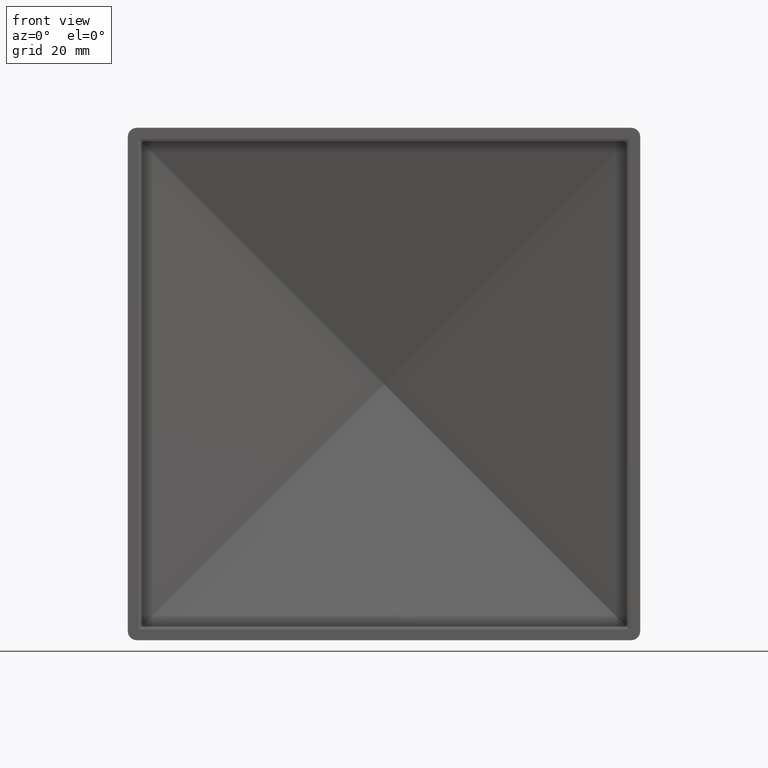
[diagram: clean part render]
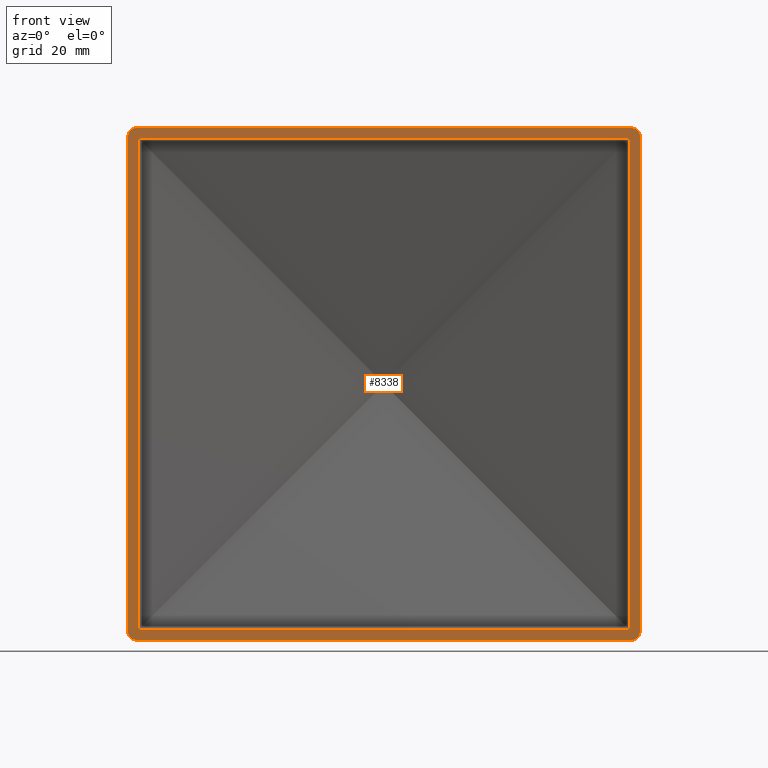
[diagram: same view with one face highlighted and labeled with its STEP entity id]
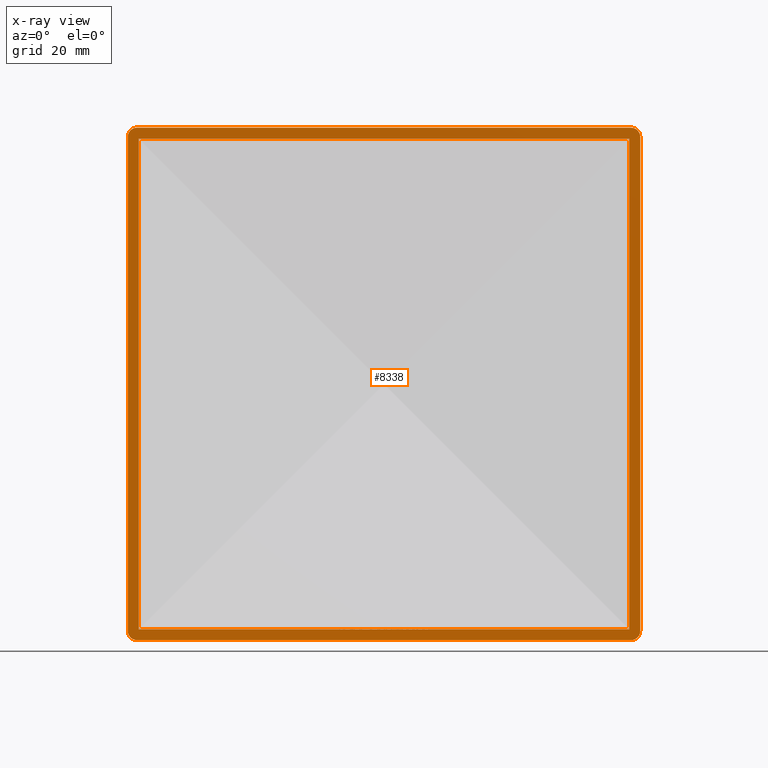
[diagram: x-ray of the same camera — body ghosted, the highlighted face saturated]
A machine part, front view. The second image highlights one B-rep face of the part: STEP entity #8338.
The next image is the same camera in x-ray: the body ghosted, the highlighted face saturated — about 0% of this face is hidden behind the body in this view.
In plain terms, the highlighted planar face has unit normal (0, 1, 0).
Its self-contained STEP definition (entity closure, byte-faithful):
#293 = ORIENTED_EDGE ( 'NONE', *, *, #661, .T. ) ;
#469 = DIRECTION ( 'NONE',  ( -8.163404592832032700E-017, -0.0000000000000000000, -1.000000000000000000 ) ) ;
#524 = LINE ( 'NONE', #10742, #2320 ) ;
#661 = EDGE_CURVE ( 'NONE', #4750, #4506, #524, .T. ) ;
#705 = EDGE_CURVE ( 'NONE', #11336, #8333, #4659, .T. ) ;
#794 = LINE ( 'NONE', #10184, #3290 ) ;
#854 = VECTOR ( 'NONE', #4649, 1000.000000000000000 ) ;
#1033 = EDGE_CURVE ( 'NONE', #2869, #3272, #5766, .T. ) ;
#1182 = VECTOR ( 'NONE', #6918, 1000.000000000000000 ) ;
#1325 = DIRECTION ( 'NONE',  ( -1.000000000000000000, 0.0000000000000000000, 0.0000000000000000000 ) ) ;
#1567 = CARTESIAN_POINT ( 'NONE',  ( -42.50000000000001400, 0.0000000000000000000, -41.00000000000000000 ) ) ;
#1590 = VERTEX_POINT ( 'NONE', #5644 ) ;
#1674 = AXIS2_PLACEMENT_3D ( 'NONE', #1840, #3723, #2835 ) ;
#1823 = AXIS2_PLACEMENT_3D ( 'NONE', #5569, #5653, #10107 ) ;
#1840 = CARTESIAN_POINT ( 'NONE',  ( 0.0000000000000000000, 0.0000000000000000000, 0.0000000000000000000 ) ) ;
#1878 = CARTESIAN_POINT ( 'NONE',  ( -40.70000000000000300, 0.0000000000000000000, 40.70000000000000300 ) ) ;
#1885 = CARTESIAN_POINT ( 'NONE',  ( 40.70000000000000300, 0.0000000000000000000, 40.70000000000000300 ) ) ;
#1952 = VERTEX_POINT ( 'NONE', #4099 ) ;
#1961 = CIRCLE ( 'NONE', #8557, 1.500000000000001300 ) ;
#2284 = ORIENTED_EDGE ( 'NONE', *, *, #5764, .T. ) ;
#2320 = VECTOR ( 'NONE', #3575, 1000.000000000000000 ) ;
#2369 = DIRECTION ( 'NONE',  ( 0.0000000000000000000, 0.0000000000000000000, 1.000000000000000000 ) ) ;
#2516 = DIRECTION ( 'NONE',  ( 0.0000000000000000000, 0.0000000000000000000, 1.000000000000000000 ) ) ;
#2616 = CARTESIAN_POINT ( 'NONE',  ( 42.49999999999999300, 0.0000000000000000000, -41.00000000000000000 ) ) ;
#2760 = PLANE ( 'NONE',  #1674 ) ;
#2835 = DIRECTION ( 'NONE',  ( 0.0000000000000000000, -0.0000000000000000000, 1.000000000000000000 ) ) ;
#2869 = VERTEX_POINT ( 'NONE', #1567 ) ;
#2923 = DIRECTION ( 'NONE',  ( 1.632680918566406500E-016, -0.0000000000000000000, 1.000000000000000000 ) ) ;
#3045 = ORIENTED_EDGE ( 'NONE', *, *, #7017, .T. ) ;
#3195 = DIRECTION ( 'NONE',  ( -0.0000000000000000000, -1.000000000000000000, -0.0000000000000000000 ) ) ;
#3240 = ORIENTED_EDGE ( 'NONE', *, *, #705, .T. ) ;
#3270 = EDGE_CURVE ( 'NONE', #2869, #1590, #5463, .T. ) ;
#3272 = VERTEX_POINT ( 'NONE', #7072 ) ;
#3290 = VECTOR ( 'NONE', #469, 1000.000000000000000 ) ;
#3425 = CARTESIAN_POINT ( 'NONE',  ( -41.00000000000001400, 0.0000000000000000000, -41.00000000000000000 ) ) ;
#3575 = DIRECTION ( 'NONE',  ( -8.163404592832032700E-017, 0.0000000000000000000, -1.000000000000000000 ) ) ;
#3634 = CARTESIAN_POINT ( 'NONE',  ( 41.00000000000000000, 0.0000000000000000000, -42.50000000000000000 ) ) ;
#3723 = DIRECTION ( 'NONE',  ( 0.0000000000000000000, 1.000000000000000000, 0.0000000000000000000 ) ) ;
#3936 = CARTESIAN_POINT ( 'NONE',  ( -42.50000000000001400, 0.0000000000000000000, -40.70000000000000300 ) ) ;
#4099 = CARTESIAN_POINT ( 'NONE',  ( 42.50000000000000000, 0.0000000000000000000, 41.00000000000000000 ) ) ;
#4114 = EDGE_CURVE ( 'NONE', #10875, #5057, #4336, .T. ) ;
#4251 = VECTOR ( 'NONE', #1325, 1000.000000000000000 ) ;
#4253 = VERTEX_POINT ( 'NONE', #2616 ) ;
#4336 = LINE ( 'NONE', #6039, #1182 ) ;
#4464 = ORIENTED_EDGE ( 'NONE', *, *, #7522, .F. ) ;
#4506 = VERTEX_POINT ( 'NONE', #5672 ) ;
#4546 = AXIS2_PLACEMENT_3D ( 'NONE', #7665, #3195, #2369 ) ;
#4649 = DIRECTION ( 'NONE',  ( -1.000000000000000000, -0.0000000000000000000, -0.0000000000000000000 ) ) ;
#4659 = LINE ( 'NONE', #8133, #10947 ) ;
#4750 = VERTEX_POINT ( 'NONE', #1885 ) ;
#4922 = EDGE_LOOP ( 'NONE', ( #7984, #8938, #4464, #2284, #8835, #7127, #9438, #11182 ) ) ;
#5057 = VERTEX_POINT ( 'NONE', #10836 ) ;
#5226 = LINE ( 'NONE', #7334, #6080 ) ;
#5298 = CARTESIAN_POINT ( 'NONE',  ( -42.50000000000001400, 0.0000000000000000000, -42.50000000000000000 ) ) ;
#5463 = LINE ( 'NONE', #5298, #5597 ) ;
#5569 = CARTESIAN_POINT ( 'NONE',  ( 41.00000000000000000, 0.0000000000000000000, -41.00000000000000000 ) ) ;
#5597 = VECTOR ( 'NONE', #7706, 1000.000000000000000 ) ;
#5644 = CARTESIAN_POINT ( 'NONE',  ( -42.50000000000000000, 0.0000000000000000000, 41.00000000000000000 ) ) ;
#5653 = DIRECTION ( 'NONE',  ( -0.0000000000000000000, -1.000000000000000000, -0.0000000000000000000 ) ) ;
#5672 = CARTESIAN_POINT ( 'NONE',  ( 40.69999999999999600, 0.0000000000000000000, -40.70000000000000300 ) ) ;
#5764 = EDGE_CURVE ( 'NONE', #1952, #5057, #1961, .T. ) ;
#5766 = CIRCLE ( 'NONE', #6960, 1.500000000000001300 ) ;
#5885 = VERTEX_POINT ( 'NONE', #3634 ) ;
#6039 = CARTESIAN_POINT ( 'NONE',  ( -42.50000000000000000, 0.0000000000000000000, 42.50000000000000000 ) ) ;
#6080 = VECTOR ( 'NONE', #6498, 1000.000000000000000 ) ;
#6101 = DIRECTION ( 'NONE',  ( -0.0000000000000000000, -1.000000000000000000, -0.0000000000000000000 ) ) ;
#6235 = CARTESIAN_POINT ( 'NONE',  ( 41.00000000000000000, 0.0000000000000000000, 41.00000000000000000 ) ) ;
#6336 = CARTESIAN_POINT ( 'NONE',  ( -42.50000000000001400, 0.0000000000000000000, -42.50000000000000000 ) ) ;
#6498 = DIRECTION ( 'NONE',  ( 1.000000000000000000, -0.0000000000000000000, 0.0000000000000000000 ) ) ;
#6766 = EDGE_CURVE ( 'NONE', #4506, #11336, #10546, .T. ) ;
#6918 = DIRECTION ( 'NONE',  ( 1.000000000000000000, 0.0000000000000000000, 0.0000000000000000000 ) ) ;
#6956 = CARTESIAN_POINT ( 'NONE',  ( -41.00000000000000000, 0.0000000000000000000, 42.50000000000000000 ) ) ;
#6960 = AXIS2_PLACEMENT_3D ( 'NONE', #3425, #6101, #2516 ) ;
#7017 = EDGE_CURVE ( 'NONE', #8333, #4750, #5226, .T. ) ;
#7072 = CARTESIAN_POINT ( 'NONE',  ( -41.00000000000001400, 0.0000000000000000000, -42.50000000000000000 ) ) ;
#7127 = ORIENTED_EDGE ( 'NONE', *, *, #10409, .T. ) ;
#7334 = CARTESIAN_POINT ( 'NONE',  ( -42.50000000000000000, 0.0000000000000000000, 40.70000000000000300 ) ) ;
#7522 = EDGE_CURVE ( 'NONE', #1952, #4253, #794, .T. ) ;
#7665 = CARTESIAN_POINT ( 'NONE',  ( -41.00000000000000000, 0.0000000000000000000, 41.00000000000000000 ) ) ;
#7706 = DIRECTION ( 'NONE',  ( 1.632680918566406500E-016, 0.0000000000000000000, 1.000000000000000000 ) ) ;
#7979 = DIRECTION ( 'NONE',  ( 0.0000000000000000000, 0.0000000000000000000, 1.000000000000000000 ) ) ;
#7984 = ORIENTED_EDGE ( 'NONE', *, *, #9497, .F. ) ;
#8053 = EDGE_CURVE ( 'NONE', #5885, #4253, #10912, .T. ) ;
#8133 = CARTESIAN_POINT ( 'NONE',  ( -40.70000000000001700, 0.0000000000000000000, -42.50000000000000000 ) ) ;
#8333 = VERTEX_POINT ( 'NONE', #1878 ) ;
#8338 = ADVANCED_FACE ( 'NONE', ( #10223, #10498 ), #2760, .F. ) ;
#8557 = AXIS2_PLACEMENT_3D ( 'NONE', #6235, #10601, #7979 ) ;
#8835 = ORIENTED_EDGE ( 'NONE', *, *, #4114, .F. ) ;
#8938 = ORIENTED_EDGE ( 'NONE', *, *, #8053, .T. ) ;
#9106 = CIRCLE ( 'NONE', #4546, 1.500000000000001300 ) ;
#9166 = EDGE_LOOP ( 'NONE', ( #293, #9479, #3240, #3045 ) ) ;
#9254 = CARTESIAN_POINT ( 'NONE',  ( -40.70000000000001700, 0.0000000000000000000, -40.70000000000000300 ) ) ;
#9438 = ORIENTED_EDGE ( 'NONE', *, *, #3270, .F. ) ;
#9479 = ORIENTED_EDGE ( 'NONE', *, *, #6766, .T. ) ;
#9497 = EDGE_CURVE ( 'NONE', #5885, #3272, #10034, .T. ) ;
#10034 = LINE ( 'NONE', #6336, #854 ) ;
#10107 = DIRECTION ( 'NONE',  ( 0.0000000000000000000, 0.0000000000000000000, 1.000000000000000000 ) ) ;
#10184 = CARTESIAN_POINT ( 'NONE',  ( 42.49999999999999300, 0.0000000000000000000, -42.50000000000000000 ) ) ;
#10223 = FACE_BOUND ( 'NONE', #9166, .T. ) ;
#10409 = EDGE_CURVE ( 'NONE', #10875, #1590, #9106, .T. ) ;
#10498 = FACE_OUTER_BOUND ( 'NONE', #4922, .T. ) ;
#10546 = LINE ( 'NONE', #3936, #4251 ) ;
#10601 = DIRECTION ( 'NONE',  ( -0.0000000000000000000, -1.000000000000000000, -0.0000000000000000000 ) ) ;
#10742 = CARTESIAN_POINT ( 'NONE',  ( 40.69999999999999600, 0.0000000000000000000, -42.50000000000000000 ) ) ;
#10836 = CARTESIAN_POINT ( 'NONE',  ( 41.00000000000000000, 0.0000000000000000000, 42.50000000000000000 ) ) ;
#10875 = VERTEX_POINT ( 'NONE', #6956 ) ;
#10912 = CIRCLE ( 'NONE', #1823, 1.500000000000001300 ) ;
#10947 = VECTOR ( 'NONE', #2923, 1000.000000000000000 ) ;
#11182 = ORIENTED_EDGE ( 'NONE', *, *, #1033, .T. ) ;
#11336 = VERTEX_POINT ( 'NONE', #9254 ) ;